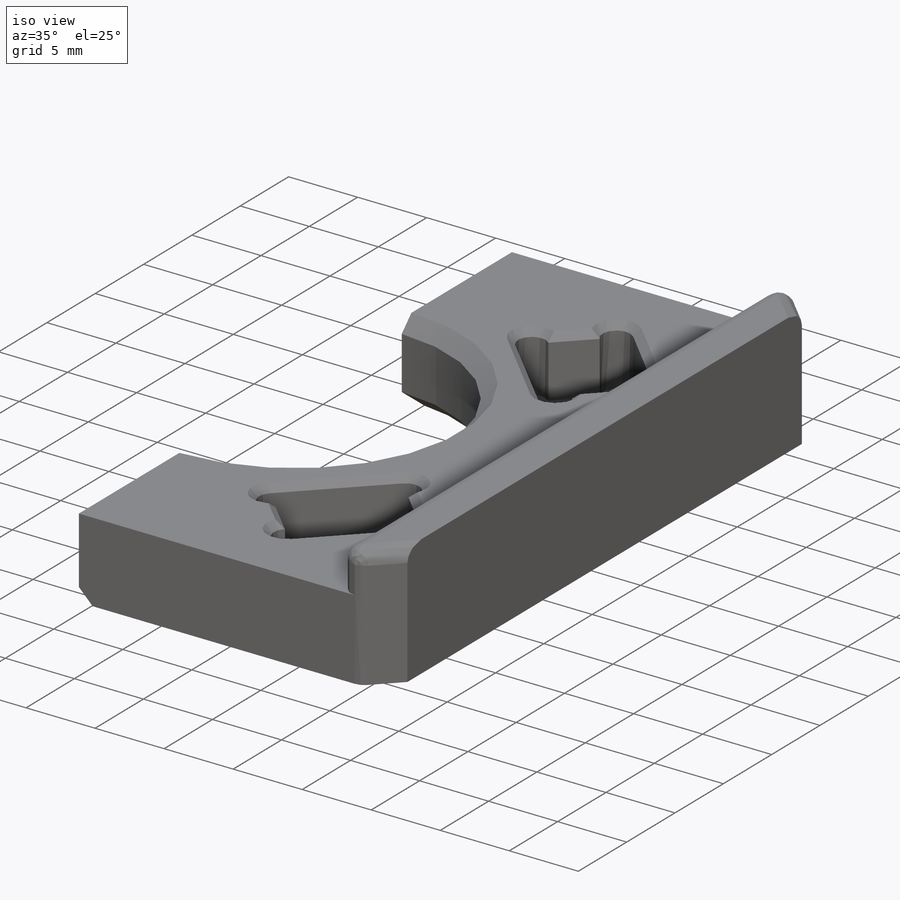
[diagram: iso view]
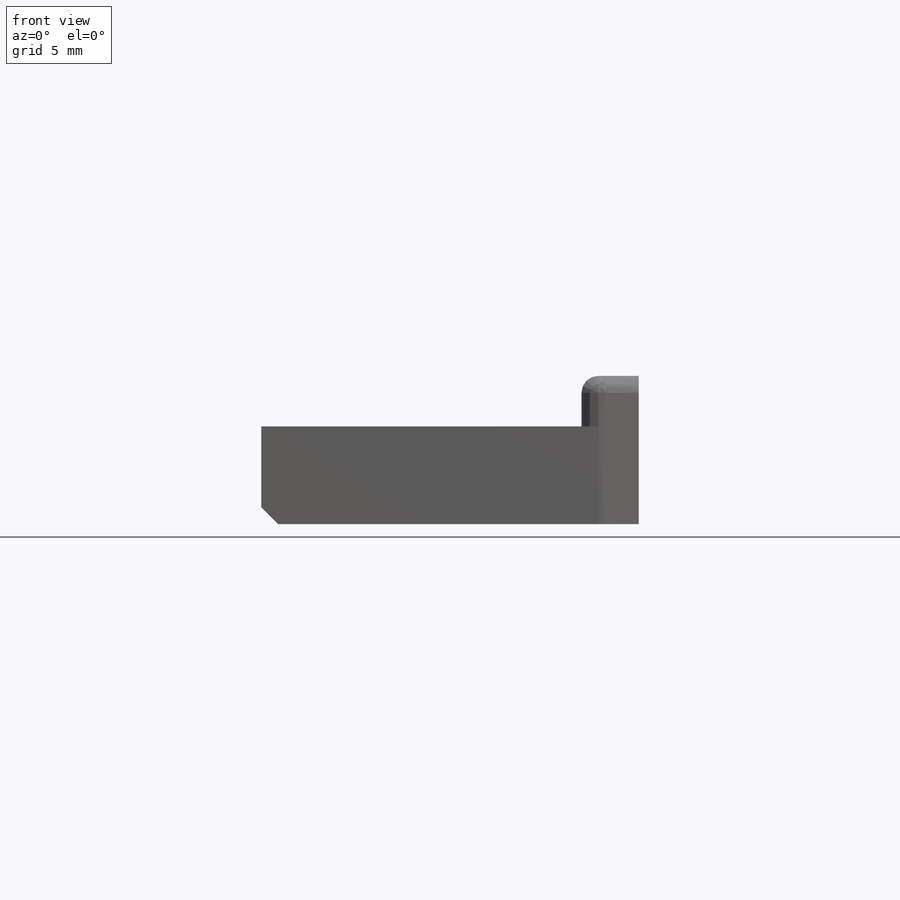
[diagram: front view]
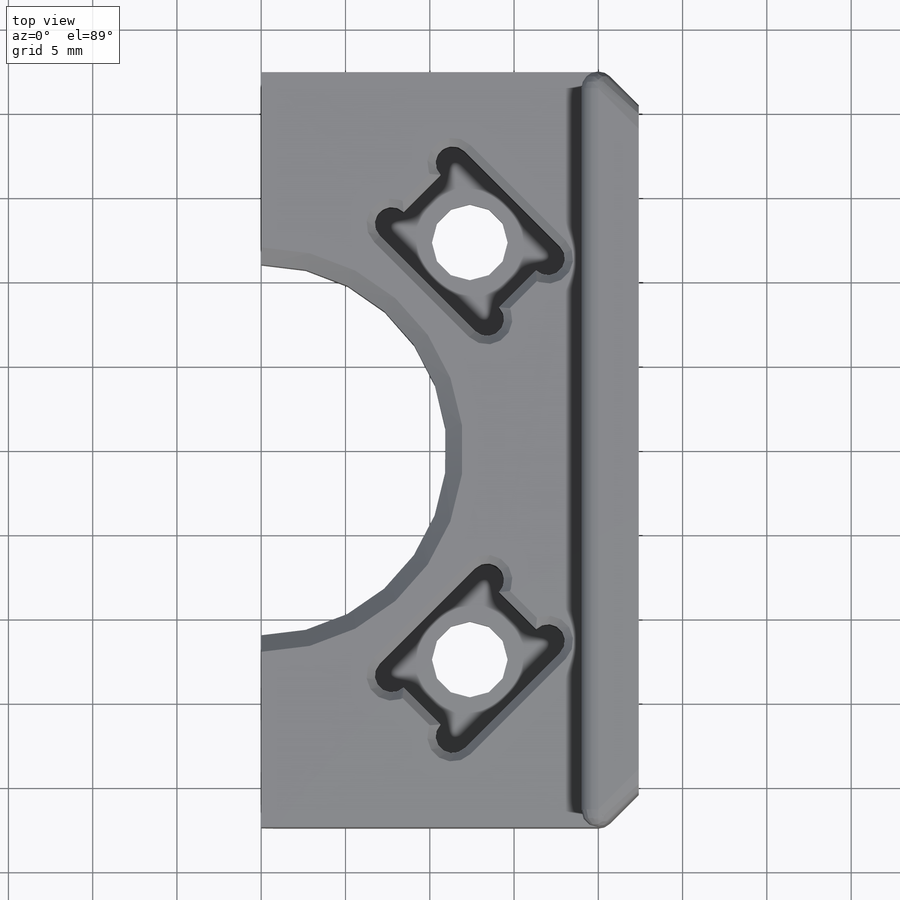
[diagram: top view]
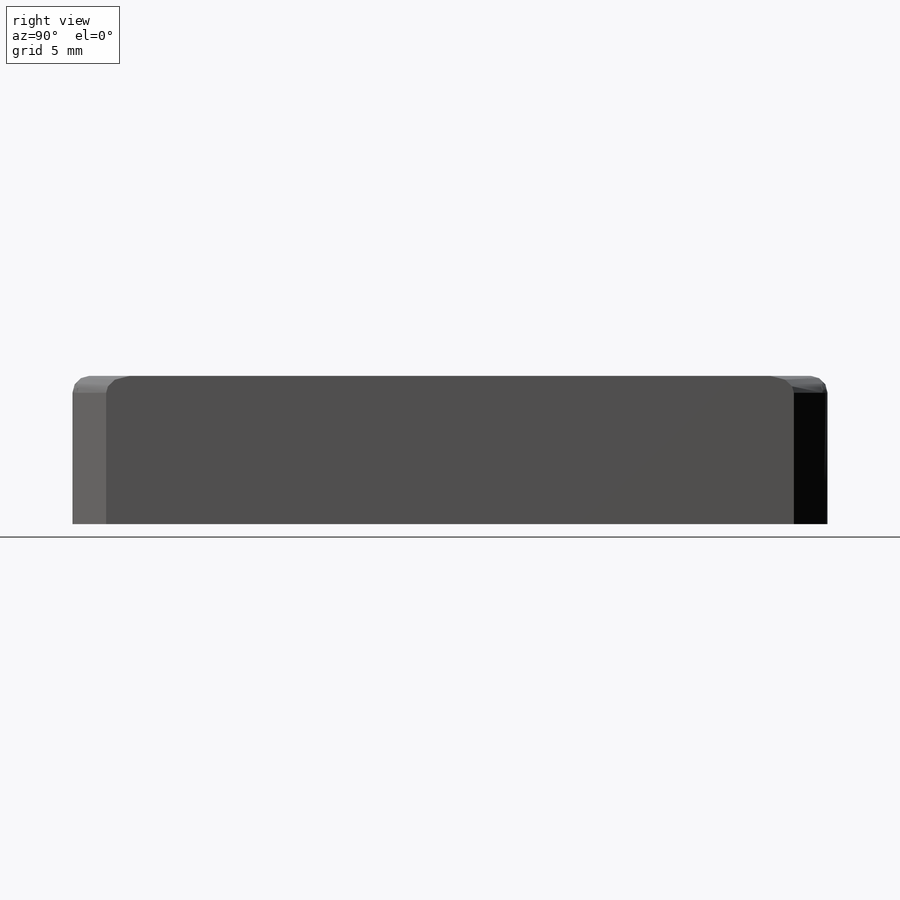
[diagram: right view]
SOLIDWORKS PART (.sldprt)
format: sldprt  version: not decoded by parser v0  size: 355,328 bytes
history: native  units: mm
features: sketch x5, plane x3, chamfer x3, cut_extrude x2, fillet x2, material x1, extrude x1, hole x1, mirror x1 (+8 scaffold rows collapsed)
feature tree (27):
  scaffold x8  (default folders/planes/origin — collapsed)
  material  "Material <nicht festgelegt>"
  plane  "Vorne"
  plane  "Oben"
  plane  "Rechts"
  sketch  "Skizze1"  dims[c1.D3=22.0mm c1.D1=~91.27554mm c1.D2=~59.160072mm c2.D1=44.8mm c2.D2=22.4mm]
  extrude  "Aufsatz-Linear austragen1"  Depth=8.8mm
  sketch  "Skizze2"  dims[c1.D1=~3.145246mm c1.D2=~18.577952mm c2.D1=19.0mm c2.D2=3.0mm]
  cut_extrude  "Schnitt-Linear austragen1"  [1 undecoded]
  chamfer  "Fase1"  Distance=2mm Angle=45deg
  chamfer  "Fase2"  Distance=1mm Angle=45deg
  hole  "Ø4.5 (4.5) Durchmesser Bohrung1"  Diameter=4.5mm Depth=5.8mm
  sketch  "Skizze5"  dims[D1=24.75mm D2=12.375mm D3=12.375mm]
  sketch  "Skizze4"  dims[hole-wizard template sketch: 59 standard entries collapsed; hole parameters kept: c18.Bohrerdurchmesser=4.5mm c18.Bohrungstiefe=5.8mm]
  sketch  "Skizze7"  dims[c1.D4=1.0mm c1.D1=7.1mm c1.D2=8.0mm c1.D3=~6.247609mm c2.D3=45.0deg]
  cut_extrude  "Schnitt-Linear austragen2"  Depth=4.3mm
  mirror  "Spiegeln2"
  chamfer  "Fase4"  Distance=0.5mm Angle=45deg
  fillet  "Verrundung1"  Radius=1mm
  fillet  "Verrundung2"  Radius=1mm
decode coverage: 13 of 15 modeling features carry decoded parameters
note: ~ marks probable driven/reference dimensions
note: 1 parameter value undecoded
note: suppression state not decoded; provenance and decode notes live in map.json
